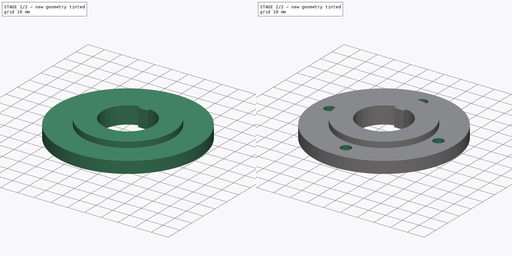
[diagram: build sequence overview — one tinted view per stage of 2, left to right]
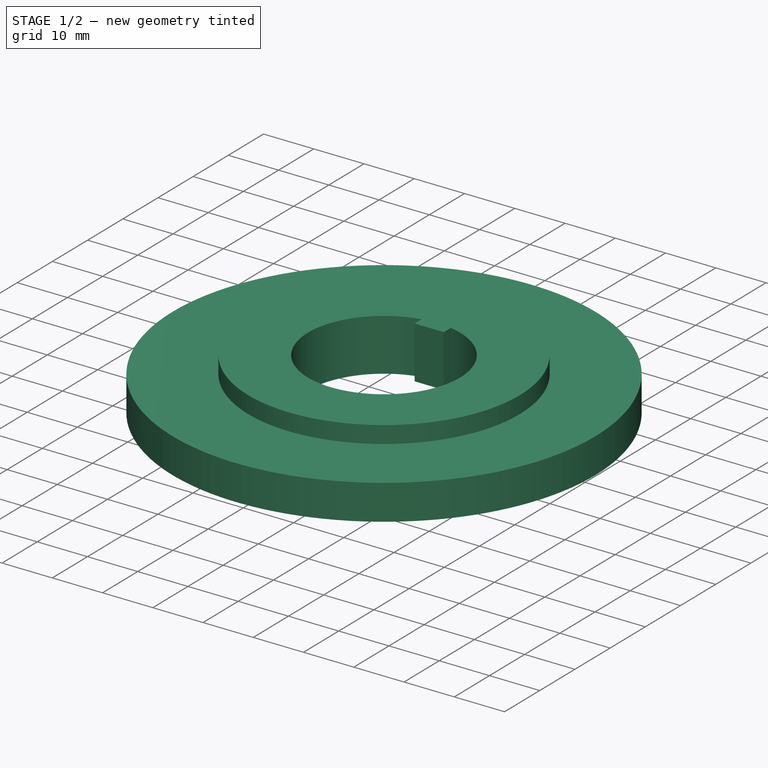
[diagram: stage 1 of 2 — iso view after this stage's code; geometry added in this stage tinted green]
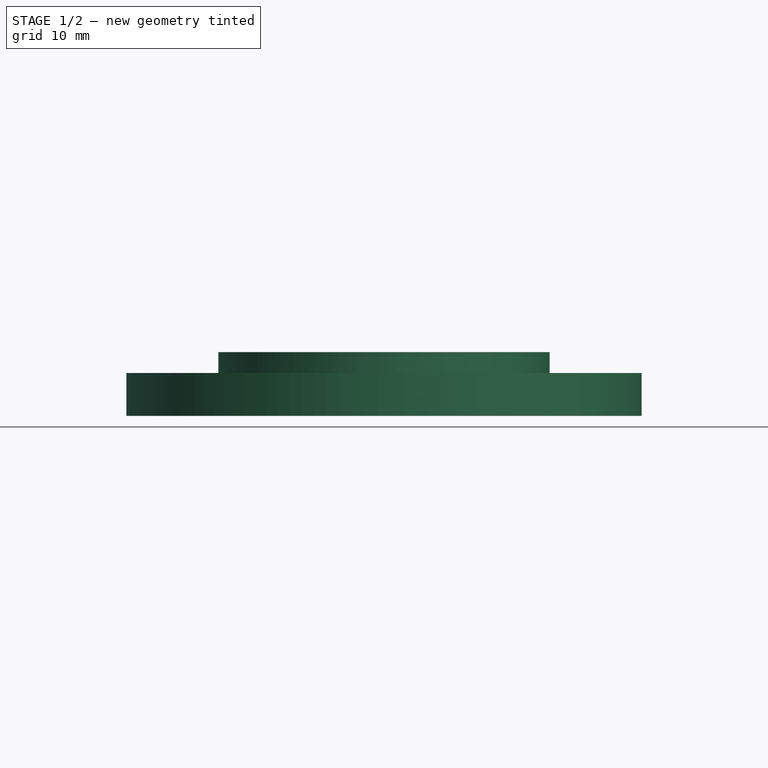
[diagram: stage 1 of 2 — front view after this stage's code; geometry added in this stage tinted green]
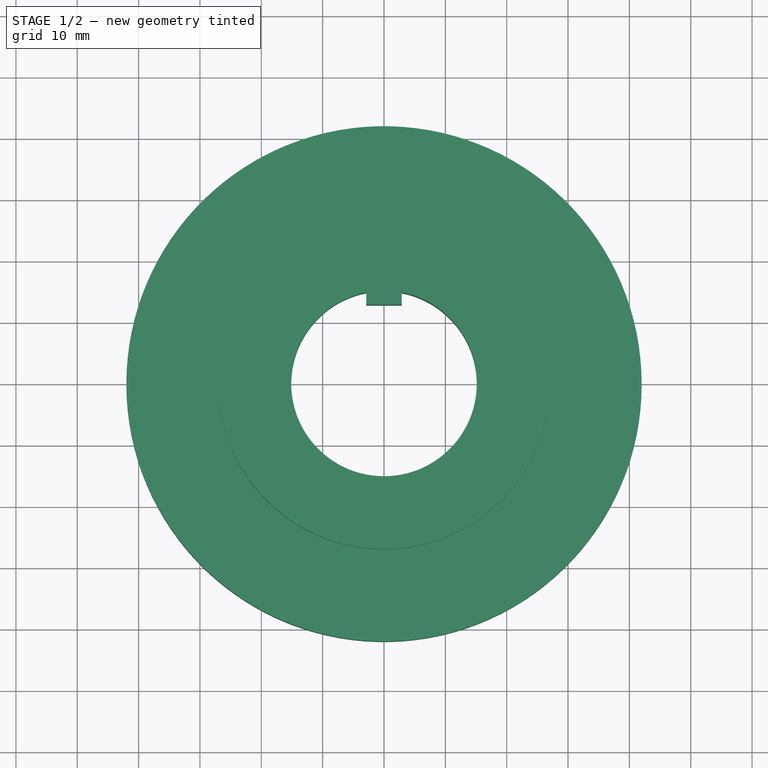
[diagram: stage 1 of 2 — top view after this stage's code; geometry added in this stage tinted green]
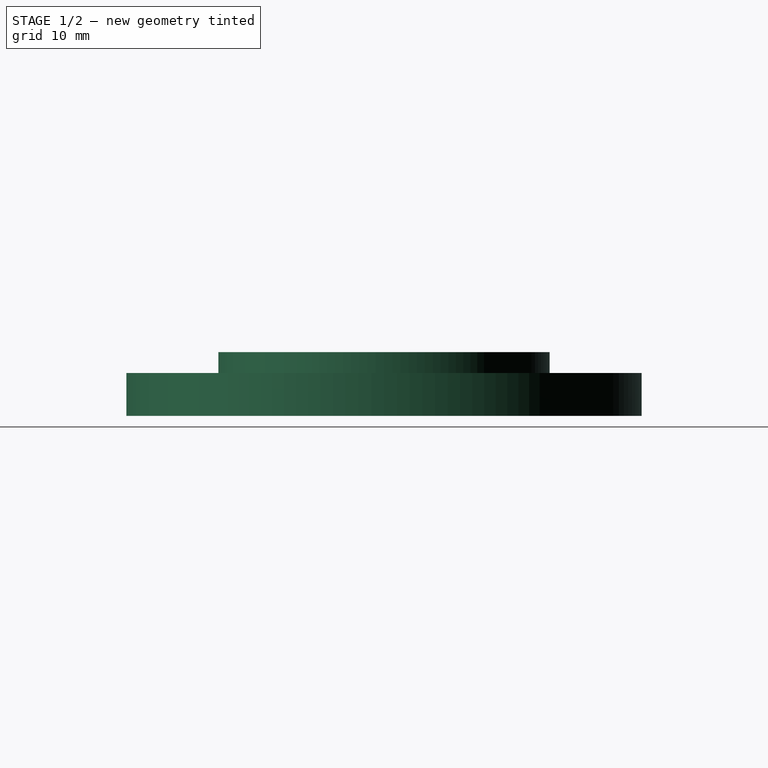
[diagram: stage 1 of 2 — right view after this stage's code; geometry added in this stage tinted green]
FCSTD DOCUMENT  (FreeCAD 0.19R20943 (Git))
Label: support de couronne
License: All rights reserved
LicenseURL: http://en.wikipedia.org/wiki/All_rights_reserved
objects: Sketcher::SketchObject×3, PartDesign::Pad×2, PartDesign::Body×2, PartDesign::Hole×1
note: 11 computed .brp shape members not serialized (recipe doc carries the construction recipe); baked Part::Feature solids carry a one-line shape summary decoded from their .brp

FEATURE [Sketcher::SketchObject] Sketch
  MapMode = 5
  Support = -> [XY_Plane]
  sketch-geometry (5):
    g0: Circle CenterX=0 CenterY=0 CenterZ=0 NormalX=0 NormalY=0 NormalZ=1 AngleXU=0 Radius=42
    g1: LineSegment StartX=-2.9 StartY=14.8444 StartZ=0 EndX=-2.9 EndY=12.8444 EndZ=0
    g2: LineSegment StartX=-2.9 StartY=12.8444 StartZ=0 EndX=2.9 EndY=12.8444 EndZ=0
    g3: LineSegment StartX=2.9 StartY=12.8444 StartZ=0 EndX=2.9 EndY=14.8444 EndZ=0
    g4: ArcOfCircle CenterX=0 CenterY=0 CenterZ=0 NormalX=0 NormalY=0 NormalZ=1 AngleXU=0 Radius=15.125 StartAngle=1.76373 EndAngle=7.66105
  constraints (13):
    c: Diameter(g0) = 84
    c: Coincident(g2,g1)
    c: Vertical(g3)
    c: Vertical(g1)
    c: DistanceX(g2,g2) = 5.8
    c: Coincident(g2,g3)
    c: Symmetric(g1,g2,g-2)
    c: DistanceY(g1,g1) = 2
    c: Coincident(g4,g0)
    c: Coincident(g4,g3)
    c: Coincident(g4,g1)
    c: Diameter(g4) = 30.25
    c: Coincident(g0,g-1)
FEATURE [PartDesign::Pad] Pad
  Length = 7
  Length2 = 100
  Profile = -> Sketch
  Type = 0
FEATURE [PartDesign::Body] Body001
  Origin = -> Origin001
FEATURE [Sketcher::SketchObject] Sketch003
  ExternalGeometry = -> [Pad]
  MapMode = 5
  Placement = pos=(0,0,7) rot=(0,0,1;0rad)
  Support = -> [Pad]
  sketch-geometry (5):
    g0: Circle CenterX=0 CenterY=0 CenterZ=0 NormalX=0 NormalY=0 NormalZ=1 AngleXU=0 Radius=27
    g1: ArcOfCircle CenterX=0 CenterY=0 CenterZ=0 NormalX=0 NormalY=0 NormalZ=1 AngleXU=0 Radius=15.125 StartAngle=1.76373 EndAngle=7.66105
    g2: LineSegment StartX=-2.9 StartY=14.8444 StartZ=0 EndX=-2.9 EndY=12.8444 EndZ=0
    g3: LineSegment StartX=2.9 StartY=12.8444 StartZ=0 EndX=2.9 EndY=14.8444 EndZ=0
    g4: LineSegment StartX=-2.9 StartY=12.8444 StartZ=0 EndX=2.9 EndY=12.8444 EndZ=0
  constraints (11):
    c: Coincident(g0,g-1)
    c: Diameter(g0) = 54
    c: Coincident(g1,g0)
    c: Coincident(g1,g-5)
    c: Coincident(g1,g-3)
    c: Coincident(g2,g1)
    c: Coincident(g2,g-4)
    c: Coincident(g3,g-5)
    c: Coincident(g3,g1)
    c: Coincident(g4,g2)
    c: Coincident(g4,g3)
FEATURE [PartDesign::Pad] Pad001
  BaseFeature = -> Pad
  Length = 3.4
  Length2 = 100
  Profile = -> Sketch003
  Type = 0
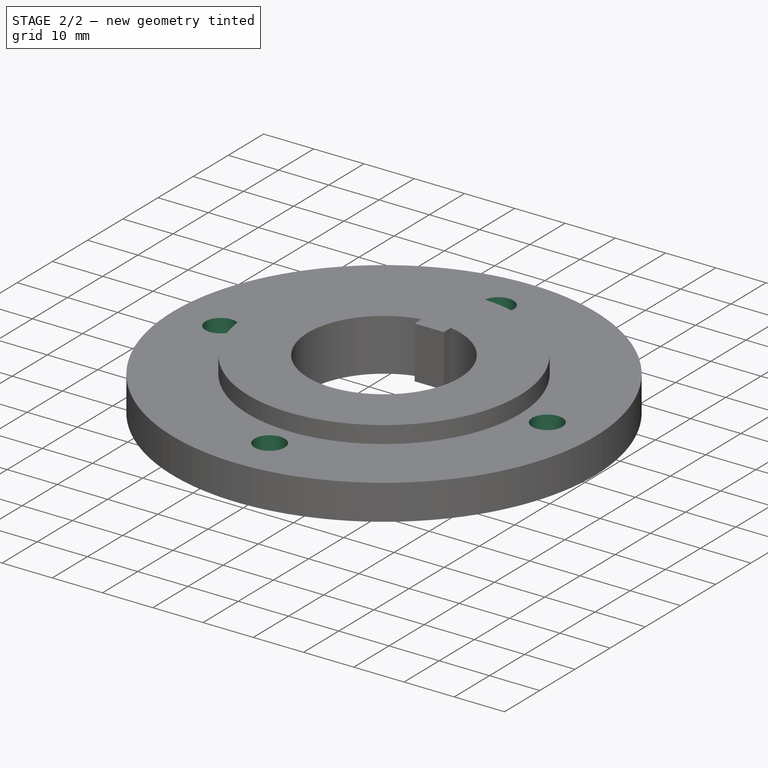
[diagram: stage 2 of 2 — iso view after this stage's code; geometry added in this stage tinted green]
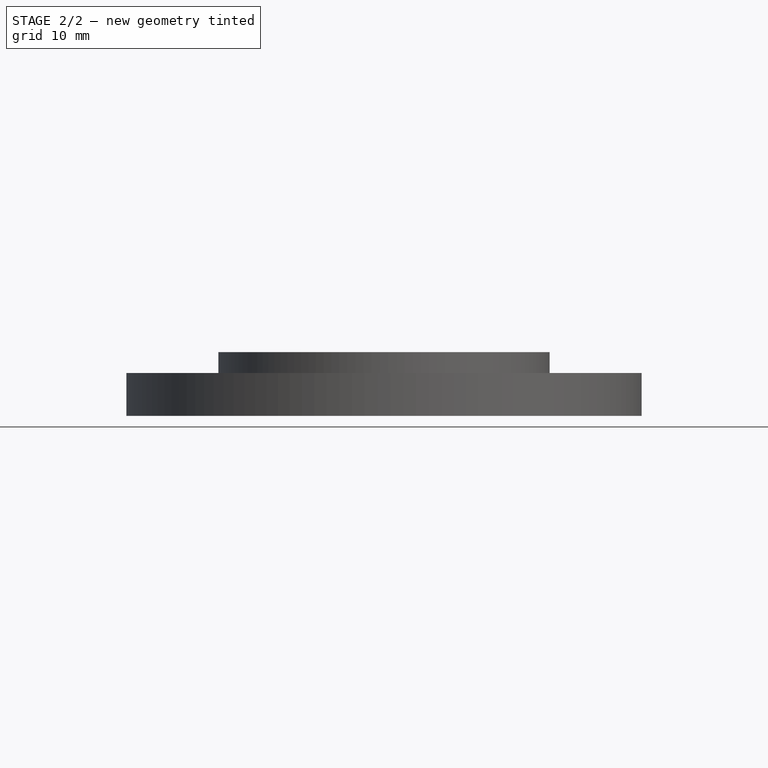
[diagram: stage 2 of 2 — front view after this stage's code; geometry added in this stage tinted green]
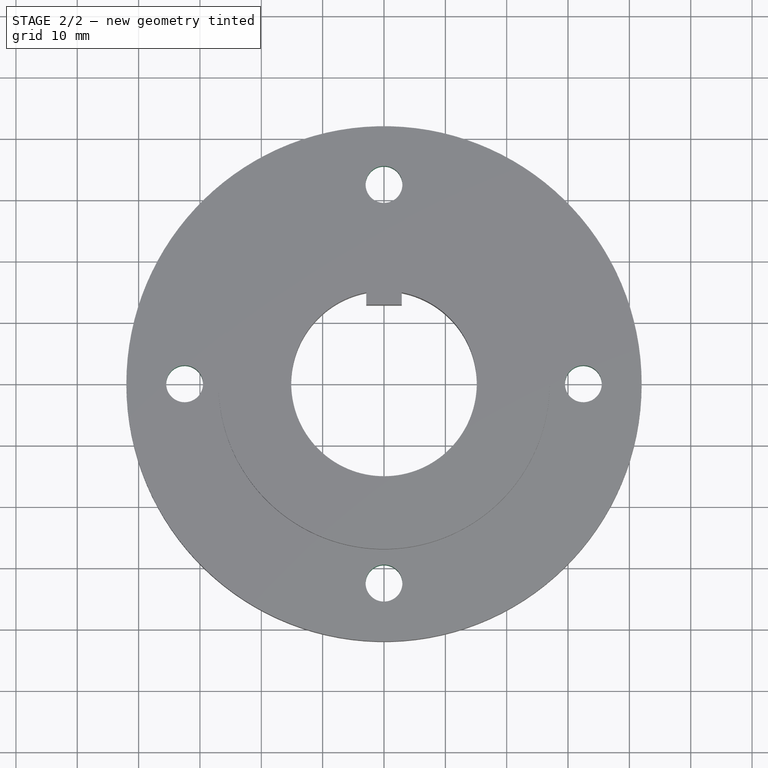
[diagram: stage 2 of 2 — top view after this stage's code; geometry added in this stage tinted green]
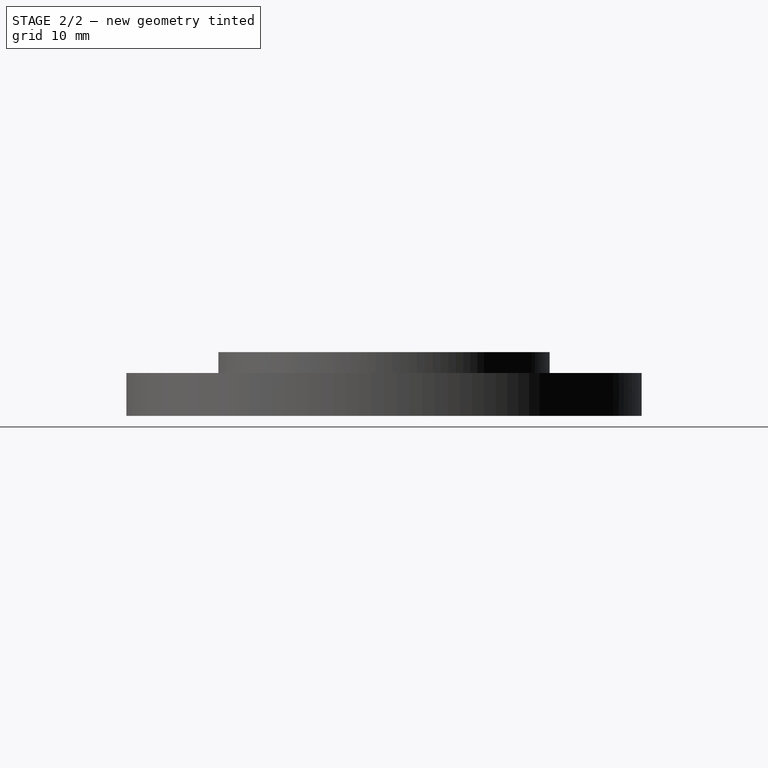
[diagram: stage 2 of 2 — right view after this stage's code; geometry added in this stage tinted green]
FEATURE [Sketcher::SketchObject] Sketch004
  MapMode = 5
  Placement = pos=(0,0,7) rot=(0,0,1;0rad)
  Support = -> [Pad001]
  sketch-geometry (4):
    g0: Circle CenterX=0 CenterY=32.5 CenterZ=0 NormalX=0 NormalY=0 NormalZ=1 AngleXU=0 Radius=3.3
    g1: Circle CenterX=0 CenterY=-32.5 CenterZ=0 NormalX=0 NormalY=0 NormalZ=1 AngleXU=0 Radius=3.3
    g2: Circle CenterX=32.5 CenterY=0 CenterZ=0 NormalX=0 NormalY=0 NormalZ=1 AngleXU=0 Radius=3.3
    g3: Circle CenterX=-32.5 CenterY=0 CenterZ=0 NormalX=0 NormalY=0 NormalZ=1 AngleXU=0 Radius=3.3
  constraints (10):
    c: Diameter(g0) = 6.6
    c: Diameter(g1) = 6.6
    c: Diameter(g2) = 6.6
    c: Diameter(g3) = 6.6
    c: Vertical(g-1,g0)
    c: Horizontal(g-1,g3)
    c: Symmetric(g0,g1,g-1)
    c: Symmetric(g3,g2,g-2)
    c: DistanceX(g3,g2) = 65
    c: DistanceY(g1,g0) = 65
FEATURE [PartDesign::Hole] Hole
  BaseFeature = -> Pad001
  Depth = 25
  DepthType = 0
  Diameter = 6
  DrillPoint = 1
  DrillPointAngle = 118
  HoleCutCountersinkAngle = 90
  HoleCutDepth = 0
  HoleCutDiameter = 0
  HoleCutType = 0
  ModelActualThread = false
  Profile = -> Sketch004
  Tapered = false
  TaperedAngle = 90
  ThreadAngle = 0
  ThreadClass = 0
  ThreadCutOffInner = 0
  ThreadCutOffOuter = 0
  ThreadDirection = 0
  ThreadFit = 0
  ThreadPitch = 0
  ThreadSize = 0
  ThreadType = 0
  Threaded = false
FEATURE [PartDesign::Body] Body
  Group = -> [Sketch,Pad,Sketch003,Pad001,Sketch004,Hole]
  Origin = -> Origin
  Tip = -> Hole
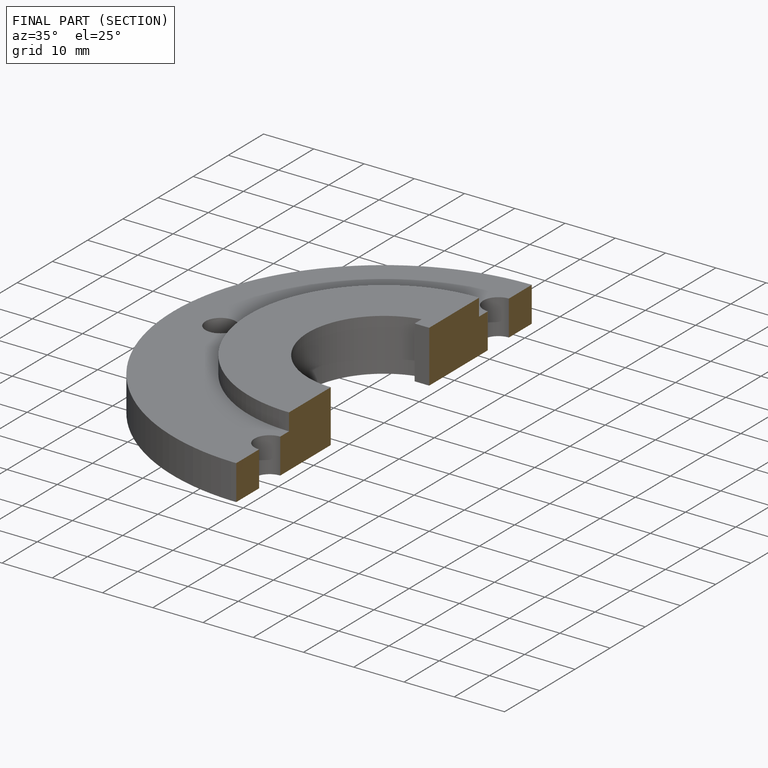
[diagram: finished part — half-section view (interior)]
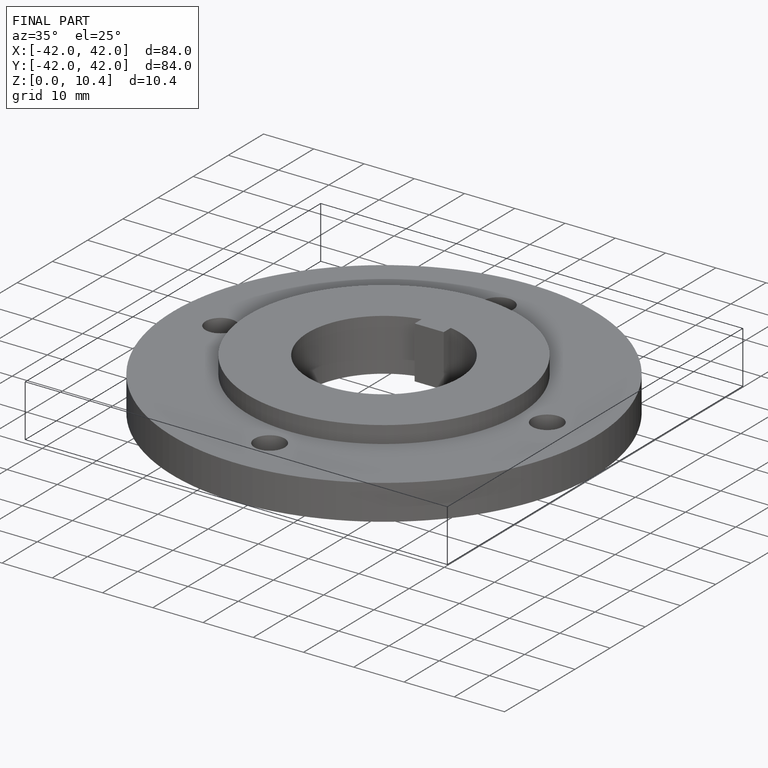
[diagram: finished part — iso view with bounding-box wireframe]
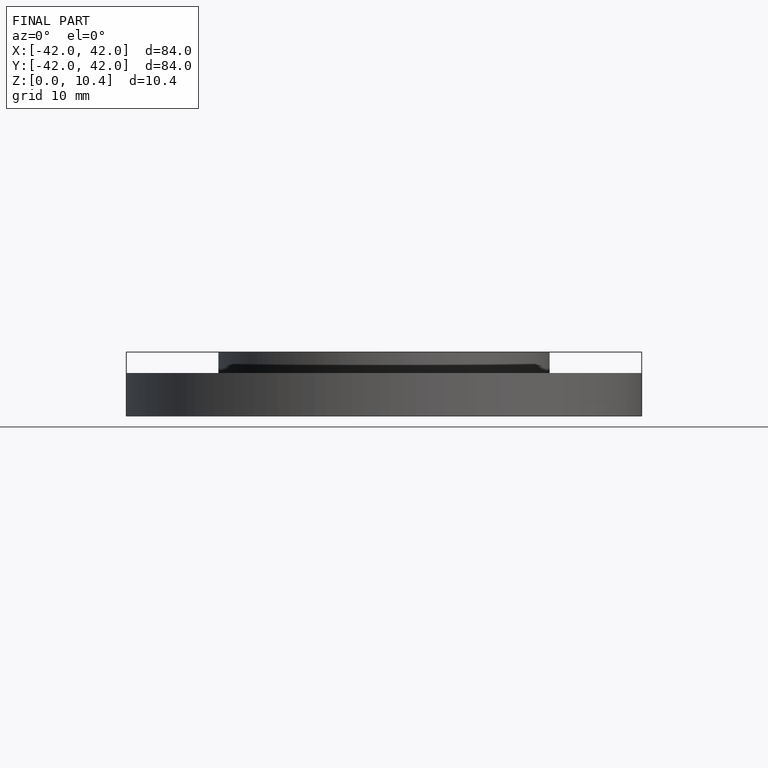
[diagram: finished part — front view with bounding-box wireframe]
